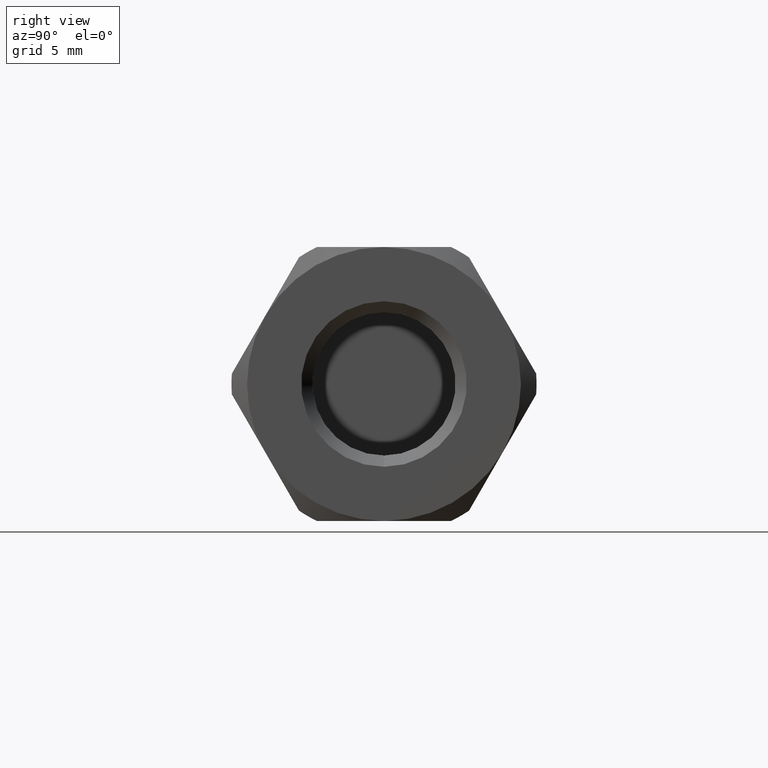
[diagram: clean part render]
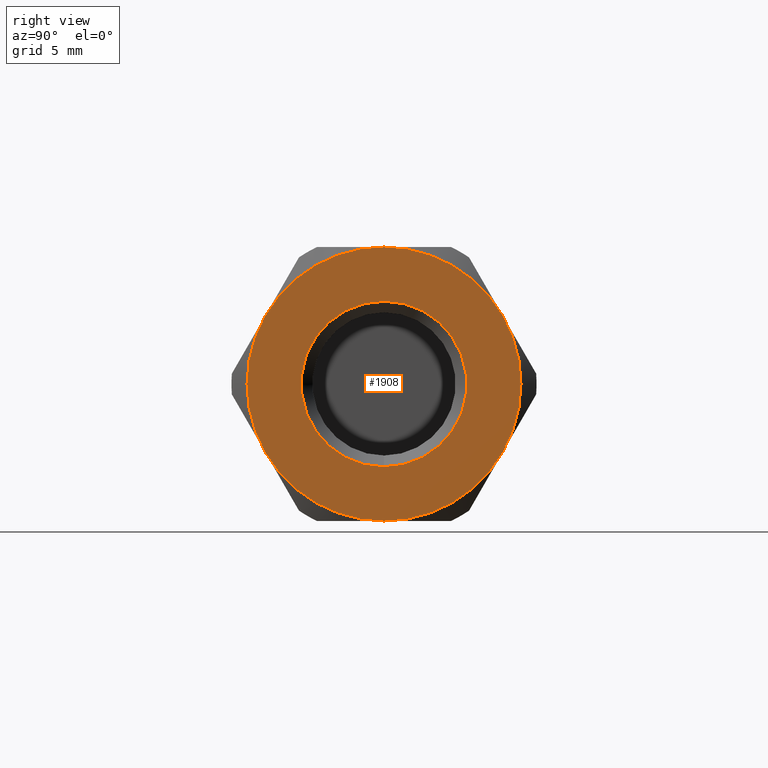
[diagram: same view with one face highlighted and labeled with its STEP entity id]
A machine part, right view. The second image highlights one B-rep face of the part: STEP entity #1908.
In plain terms, the highlighted planar face has unit normal (1, 0, 0).
Its self-contained STEP definition (entity closure, byte-faithful):
#108 = CARTESIAN_POINT ( 'NONE',  ( 48.64999999999999900, 0.0000000000000000000, 0.0000000000000000000 ) ) ;
#109 = DIRECTION ( 'NONE',  ( -1.000000000000000000, 0.0000000000000000000, 0.0000000000000000000 ) ) ;
#110 = DIRECTION ( 'NONE',  ( 0.0000000000000000000, -5.665498452323003400E-016, 1.000000000000000000 ) ) ;
#126 = CARTESIAN_POINT ( 'NONE',  ( 48.64999999999999900, 0.0000000000000000000, 0.0000000000000000000 ) ) ;
#127 = DIRECTION ( 'NONE',  ( -1.000000000000000000, 0.0000000000000000000, 0.0000000000000000000 ) ) ;
#128 = DIRECTION ( 'NONE',  ( 0.0000000000000000000, -5.665498452323003400E-016, 1.000000000000000000 ) ) ;
#129 = CARTESIAN_POINT ( 'NONE',  ( 48.64999999999999900, 0.0000000000000000000, 0.0000000000000000000 ) ) ;
#130 = DIRECTION ( 'NONE',  ( -1.000000000000000000, 0.0000000000000000000, 0.0000000000000000000 ) ) ;
#131 = DIRECTION ( 'NONE',  ( 0.0000000000000000000, -5.665498452323003400E-016, 1.000000000000000000 ) ) ;
#132 = CARTESIAN_POINT ( 'NONE',  ( 48.64999999999999900, 0.0000000000000000000, 0.0000000000000000000 ) ) ;
#133 = DIRECTION ( 'NONE',  ( -1.000000000000000000, 0.0000000000000000000, 0.0000000000000000000 ) ) ;
#134 = DIRECTION ( 'NONE',  ( 0.0000000000000000000, -5.665498452323003400E-016, 1.000000000000000000 ) ) ;
#135 = CARTESIAN_POINT ( 'NONE',  ( 48.64999999999999900, 0.0000000000000000000, 0.0000000000000000000 ) ) ;
#136 = DIRECTION ( 'NONE',  ( -1.000000000000000000, 0.0000000000000000000, 0.0000000000000000000 ) ) ;
#137 = DIRECTION ( 'NONE',  ( 0.0000000000000000000, -5.665498452323003400E-016, 1.000000000000000000 ) ) ;
#138 = CARTESIAN_POINT ( 'NONE',  ( 48.64999999999999900, 0.0000000000000000000, 0.0000000000000000000 ) ) ;
#139 = DIRECTION ( 'NONE',  ( -1.000000000000000000, 0.0000000000000000000, 0.0000000000000000000 ) ) ;
#140 = DIRECTION ( 'NONE',  ( 0.0000000000000000000, -5.665498452323003400E-016, 1.000000000000000000 ) ) ;
#141 = CARTESIAN_POINT ( 'NONE',  ( 48.64999999999999900, 0.0000000000000000000, 0.0000000000000000000 ) ) ;
#142 = DIRECTION ( 'NONE',  ( -1.000000000000000000, 0.0000000000000000000, 0.0000000000000000000 ) ) ;
#143 = DIRECTION ( 'NONE',  ( 0.0000000000000000000, -5.665498452323003400E-016, 1.000000000000000000 ) ) ;
#144 = CARTESIAN_POINT ( 'NONE',  ( 48.64999999999999900, 0.0000000000000000000, 0.0000000000000000000 ) ) ;
#145 = DIRECTION ( 'NONE',  ( -1.000000000000000000, 0.0000000000000000000, 0.0000000000000000000 ) ) ;
#146 = DIRECTION ( 'NONE',  ( 0.0000000000000000000, -5.665498452323003400E-016, 1.000000000000000000 ) ) ;
#446 = CARTESIAN_POINT ( 'NONE',  ( 48.64999999999999900, 4.497324821578494300E-015, -10.99999999999999600 ) ) ;
#466 = CARTESIAN_POINT ( 'NONE',  ( 48.64999999999999900, -9.526279441628823000, 5.500000000000000900 ) ) ;
#471 = CARTESIAN_POINT ( 'NONE',  ( 48.64999999999999900, -2.953166349361805700E-015, 6.649999999999996800 ) ) ;
#472 = CARTESIAN_POINT ( 'NONE',  ( 48.64999999999999900, -9.526279441628817700, -5.499999999999993800 ) ) ;
#476 = CARTESIAN_POINT ( 'NONE',  ( 48.64999999999999900, -6.232048297555303800E-015, 11.00000000000000000 ) ) ;
#482 = CARTESIAN_POINT ( 'NONE',  ( 48.64999999999999900, 9.526279441628819500, -5.500000000000000900 ) ) ;
#490 = CARTESIAN_POINT ( 'NONE',  ( 48.64999999999999900, 9.526279441628819500, 5.499999999999998200 ) ) ;
#494 = CARTESIAN_POINT ( 'NONE',  ( 48.64999999999999900, 3.767556470794795400E-015, -6.649999999999996800 ) ) ;
#559 = PLANE ( 'NONE',  #866 ) ;
#560 = CARTESIAN_POINT ( 'NONE',  ( 48.64999999999999900, 11.00000000000000000, 7.364443256607787900E-016 ) ) ;
#561 = DIRECTION ( 'NONE',  ( 1.000000000000000000, 0.0000000000000000000, 0.0000000000000000000 ) ) ;
#562 = DIRECTION ( 'NONE',  ( 0.0000000000000000000, 5.665498452323003400E-016, -1.000000000000000000 ) ) ;
#866 = AXIS2_PLACEMENT_3D ( 'NONE', #560, #561, #562 ) ;
#1003 = ORIENTED_EDGE ( 'NONE', *, *, #1626, .T. ) ;
#1004 = ORIENTED_EDGE ( 'NONE', *, *, #1633, .T. ) ;
#1005 = ORIENTED_EDGE ( 'NONE', *, *, #1634, .F. ) ;
#1006 = ORIENTED_EDGE ( 'NONE', *, *, #1635, .F. ) ;
#1007 = ORIENTED_EDGE ( 'NONE', *, *, #1636, .F. ) ;
#1008 = ORIENTED_EDGE ( 'NONE', *, *, #1637, .F. ) ;
#1009 = ORIENTED_EDGE ( 'NONE', *, *, #1638, .F. ) ;
#1010 = ORIENTED_EDGE ( 'NONE', *, *, #1639, .F. ) ;
#1134 = EDGE_LOOP ( 'NONE', ( #1003, #1004 ) ) ;
#1135 = EDGE_LOOP ( 'NONE', ( #1005, #1006, #1007, #1008, #1009, #1010 ) ) ;
#1299 = CIRCLE ( 'NONE', #1763, 6.649999999999996800 ) ;
#1308 = CIRCLE ( 'NONE', #1767, 6.649999999999996800 ) ;
#1309 = CIRCLE ( 'NONE', #1768, 11.00000000000000000 ) ;
#1310 = CIRCLE ( 'NONE', #1769, 11.00000000000000000 ) ;
#1311 = CIRCLE ( 'NONE', #1770, 11.00000000000000000 ) ;
#1312 = CIRCLE ( 'NONE', #1771, 11.00000000000000000 ) ;
#1313 = CIRCLE ( 'NONE', #1772, 11.00000000000000000 ) ;
#1314 = CIRCLE ( 'NONE', #1773, 11.00000000000000000 ) ;
#1416 = FACE_BOUND ( 'NONE', #1134, .T. ) ;
#1417 = FACE_OUTER_BOUND ( 'NONE', #1135, .T. ) ;
#1626 = EDGE_CURVE ( 'NONE', #1854, #1819, #1299, .T. ) ;
#1633 = EDGE_CURVE ( 'NONE', #1819, #1854, #1308, .T. ) ;
#1634 = EDGE_CURVE ( 'NONE', #1825, #1850, #1309, .T. ) ;
#1635 = EDGE_CURVE ( 'NONE', #1814, #1825, #1310, .T. ) ;
#1636 = EDGE_CURVE ( 'NONE', #1820, #1814, #1311, .T. ) ;
#1637 = EDGE_CURVE ( 'NONE', #1791, #1820, #1312, .T. ) ;
#1638 = EDGE_CURVE ( 'NONE', #1834, #1791, #1313, .T. ) ;
#1639 = EDGE_CURVE ( 'NONE', #1850, #1834, #1314, .T. ) ;
#1763 = AXIS2_PLACEMENT_3D ( 'NONE', #108, #109, #110 ) ;
#1767 = AXIS2_PLACEMENT_3D ( 'NONE', #126, #127, #128 ) ;
#1768 = AXIS2_PLACEMENT_3D ( 'NONE', #129, #130, #131 ) ;
#1769 = AXIS2_PLACEMENT_3D ( 'NONE', #132, #133, #134 ) ;
#1770 = AXIS2_PLACEMENT_3D ( 'NONE', #135, #136, #137 ) ;
#1771 = AXIS2_PLACEMENT_3D ( 'NONE', #138, #139, #140 ) ;
#1772 = AXIS2_PLACEMENT_3D ( 'NONE', #141, #142, #143 ) ;
#1773 = AXIS2_PLACEMENT_3D ( 'NONE', #144, #145, #146 ) ;
#1791 = VERTEX_POINT ( 'NONE', #446 ) ;
#1814 = VERTEX_POINT ( 'NONE', #466 ) ;
#1819 = VERTEX_POINT ( 'NONE', #471 ) ;
#1820 = VERTEX_POINT ( 'NONE', #472 ) ;
#1825 = VERTEX_POINT ( 'NONE', #476 ) ;
#1834 = VERTEX_POINT ( 'NONE', #482 ) ;
#1850 = VERTEX_POINT ( 'NONE', #490 ) ;
#1854 = VERTEX_POINT ( 'NONE', #494 ) ;
#1908 = ADVANCED_FACE ( 'NONE', ( #1416, #1417 ), #559, .T. ) ;